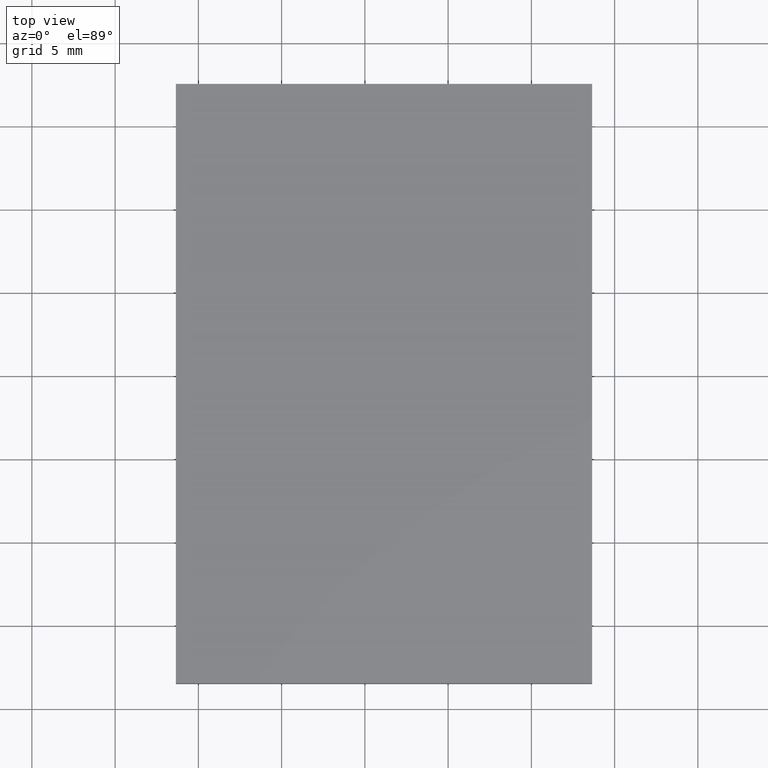
[diagram: clean part render]
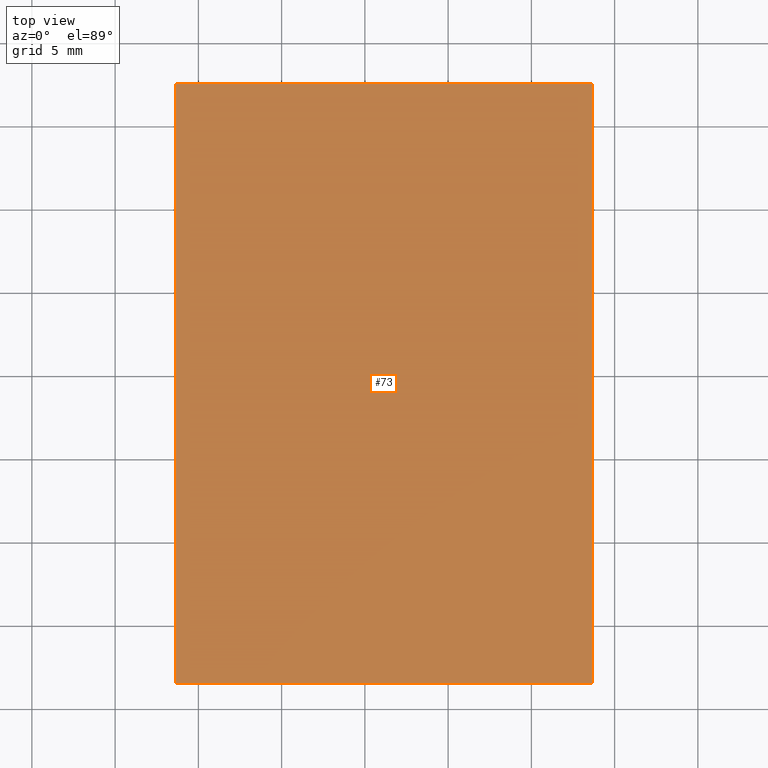
[diagram: same view with one face highlighted and labeled with its STEP entity id]
A machine part, top view. The second image highlights one B-rep face of the part: STEP entity #73.
In plain terms, the highlighted planar face has unit normal (-0, 0, 1).
Its self-contained STEP definition (entity closure, byte-faithful):
#2 = ORIENTED_EDGE ( 'NONE', *, *, #97, .T. ) ;
#4 = EDGE_CURVE ( 'NONE', #11, #20, #75, .T. ) ;
#11 = VERTEX_POINT ( 'NONE', #101 ) ;
#12 = CARTESIAN_POINT ( 'NONE',  ( -6.351626016260162500, 7.520325203252024700, 3.000000000000000000 ) ) ;
#20 = VERTEX_POINT ( 'NONE', #12 ) ;
#33 = FACE_OUTER_BOUND ( 'NONE', #176, .T. ) ;
#45 = CARTESIAN_POINT ( 'NONE',  ( 18.64837398373983700, 7.520325203252024700, 3.000000000000000000 ) ) ;
#73 = ADVANCED_FACE ( 'NONE', ( #33 ), #79, .T. ) ;
#75 = LINE ( 'NONE', #277, #186 ) ;
#79 = PLANE ( 'NONE',  #144 ) ;
#89 = CARTESIAN_POINT ( 'NONE',  ( -6.351626016260158100, -28.47967479674797200, 3.000000000000000000 ) ) ;
#97 = EDGE_CURVE ( 'NONE', #108, #11, #251, .T. ) ;
#101 = CARTESIAN_POINT ( 'NONE',  ( 18.64837398373983700, 7.520325203252024700, 3.000000000000000000 ) ) ;
#107 = LINE ( 'NONE', #231, #221 ) ;
#108 = VERTEX_POINT ( 'NONE', #237 ) ;
#120 = ORIENTED_EDGE ( 'NONE', *, *, #150, .T. ) ;
#130 = DIRECTION ( 'NONE',  ( 1.204669080539449300E-016, -1.000000000000000000, 0.0000000000000000000 ) ) ;
#144 = AXIS2_PLACEMENT_3D ( 'NONE', #253, #292, #185 ) ;
#150 = EDGE_CURVE ( 'NONE', #265, #108, #241, .T. ) ;
#161 = DIRECTION ( 'NONE',  ( 1.000000000000000000, 0.0000000000000000000, 0.0000000000000000000 ) ) ;
#166 = VECTOR ( 'NONE', #161, 1000.000000000000000 ) ;
#176 = EDGE_LOOP ( 'NONE', ( #289, #120, #2, #229 ) ) ;
#185 = DIRECTION ( 'NONE',  ( 1.000000000000000000, 0.0000000000000000000, 0.0000000000000000000 ) ) ;
#186 = VECTOR ( 'NONE', #202, 1000.000000000000000 ) ;
#188 = DIRECTION ( 'NONE',  ( -2.891205793294678800E-016, 1.000000000000000000, -0.0000000000000000000 ) ) ;
#200 = CARTESIAN_POINT ( 'NONE',  ( -6.351626016260158100, -28.47967479674797200, 3.000000000000000000 ) ) ;
#202 = DIRECTION ( 'NONE',  ( -1.000000000000000000, -0.0000000000000000000, -0.0000000000000000000 ) ) ;
#221 = VECTOR ( 'NONE', #130, 1000.000000000000000 ) ;
#229 = ORIENTED_EDGE ( 'NONE', *, *, #4, .T. ) ;
#231 = CARTESIAN_POINT ( 'NONE',  ( -6.351626016260162500, 7.520325203252024700, 3.000000000000000000 ) ) ;
#237 = CARTESIAN_POINT ( 'NONE',  ( 18.64837398373984800, -28.47967479674797200, 3.000000000000000000 ) ) ;
#238 = EDGE_CURVE ( 'NONE', #20, #265, #107, .T. ) ;
#241 = LINE ( 'NONE', #200, #166 ) ;
#251 = LINE ( 'NONE', #45, #269 ) ;
#253 = CARTESIAN_POINT ( 'NONE',  ( 0.0000000000000000000, 0.0000000000000000000, 3.000000000000000000 ) ) ;
#265 = VERTEX_POINT ( 'NONE', #89 ) ;
#269 = VECTOR ( 'NONE', #188, 1000.000000000000000 ) ;
#277 = CARTESIAN_POINT ( 'NONE',  ( -6.351626016260162500, 7.520325203252024700, 3.000000000000000000 ) ) ;
#289 = ORIENTED_EDGE ( 'NONE', *, *, #238, .T. ) ;
#292 = DIRECTION ( 'NONE',  ( -0.0000000000000000000, 0.0000000000000000000, 1.000000000000000000 ) ) ;